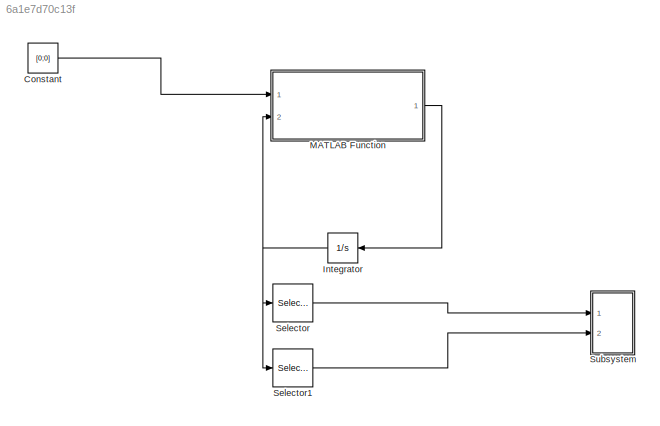
MODEL slx_6a1e7d70c13f
KIND model
CONFIG AbsTol = auto
CONFIG EnableMultiTasking = off
CONFIG FixedStep = 0.01
CONFIG MaxStep = auto
CONFIG MinStep = auto
CONFIG RelTol = 1e-3
CONFIG SampleTimeConstraint = Unconstrained
CONFIG SolverName = ode1
CONFIG StartTime = 0
CONFIG StopTime = 10
BLOCK [Constant] Constant
  Value = [0;0]
BLOCK [Integrator] Integrator
  InitialCondition = [0;0;0.1;0]
  NameLocation = top
  Ports = [1, 1]
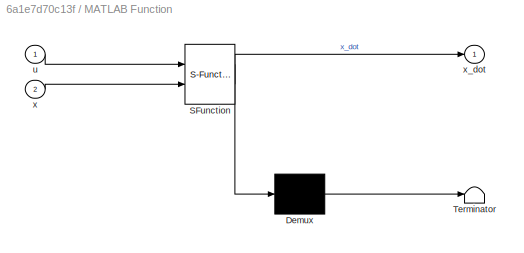
BLOCK [SubSystem] MATLAB Function
  ErrorFcn = Stateflow.Translate.translate
  PermitHierarchicalResolution = ExplicitOnly
  Ports = [2, 1]
  RequestExecContextInheritance = off
  SFBlockType = MATLAB Function
  TreatAsAtomicUnit = on
BLOCK [Demux] MATLAB Function/ Demux 
  Outputs = 1
  Ports = [1, 1]
BLOCK [S-Function] MATLAB Function/ SFunction 
  EnableBusSupport = on
  FunctionName = sf_sfun
  PortCounts = [2 2]
  Ports = [2, 2]
  SFcnIsStateOwnerBlock = off
  SFunctionDeploymentMode = off
  Tag = Stateflow S-Function 1
BLOCK [Terminator] MATLAB Function/ Terminator 
BLOCK [Inport] MATLAB Function/u
BLOCK [Inport] MATLAB Function/x
  Port = 2
BLOCK [Outport] MATLAB Function/x_dot
BLOCK [Selector] Selector
  IndexOptions = Index vector (dialog)
  Indices = [1]
  InputPortWidth = 4
  OutputSizes = 1
  Ports = [1, 1]
BLOCK [Selector] Selector1
  IndexOptions = Index vector (dialog)
  Indices = [3]
  InputPortWidth = 4
  OutputSizes = 1
  Ports = [1, 1]
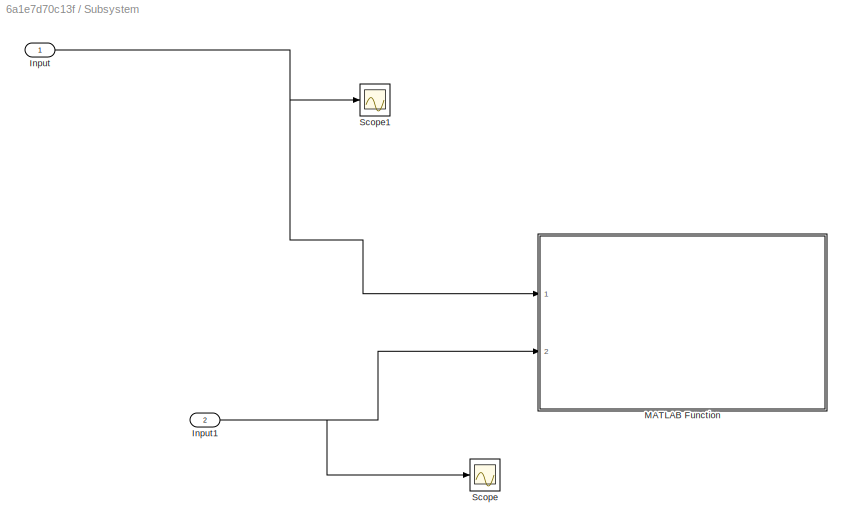
BLOCK [SubSystem] Subsystem
  Ports = [2]
  RequestExecContextInheritance = off
BLOCK [Inport] Subsystem/Input
BLOCK [Inport] Subsystem/Input1
  Port = 2
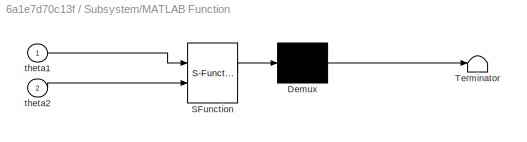
BLOCK [SubSystem] Subsystem/MATLAB Function
  ErrorFcn = Stateflow.Translate.translate
  PermitHierarchicalResolution = ExplicitOnly
  Ports = [2]
  RequestExecContextInheritance = off
  SFBlockType = MATLAB Function
  TreatAsAtomicUnit = on
BLOCK [Demux] Subsystem/MATLAB Function/ Demux 
  Outputs = 1
  Ports = [1, 1]
BLOCK [S-Function] Subsystem/MATLAB Function/ SFunction 
  EnableBusSupport = on
  FunctionName = sf_sfun
  PortCounts = [2 1]
  Ports = [2, 1]
  SFcnIsStateOwnerBlock = off
  SFunctionDeploymentMode = off
  Tag = Stateflow S-Function 2
BLOCK [Terminator] Subsystem/MATLAB Function/ Terminator 
BLOCK [Inport] Subsystem/MATLAB Function/theta1
BLOCK [Inport] Subsystem/MATLAB Function/theta2
  Port = 2
BLOCK [Scope] Subsystem/Scope
  Floating = off
  NumInputPorts = 1
  Ports = [1]
  ScopeSpecificationString = Simulink.scopes.TimeScopeBlockCfg('CurrentConfiguration', extmgr.ConfigurationSet(extmgr.Configuration('Core','General UI',true),extmgr.Configuration('Core','Source UI',true),extmgr.Configuration('Sources','WiredSimulink',true),extmgr.Configuration('Visuals','Time Domain',true,'SerializedDisplays',{struct('MinYLimReal','-0.7854','MaxYLimReal','7.06858','YLabelReal','','MinYLimMag','0.00000','MaxYL...<+1328ch>
BLOCK [Scope] Subsystem/Scope1
  Floating = off
  NumInputPorts = 1
  Ports = [1]
  ScopeSpecificationString = Simulink.scopes.TimeScopeBlockCfg('CurrentConfiguration', extmgr.ConfigurationSet(extmgr.Configuration('Core','General UI',true),extmgr.Configuration('Core','Source UI',true),extmgr.Configuration('Sources','WiredSimulink',true,'DataLoggingVariableName','ScopeData1'),extmgr.Configuration('Visuals','Time Domain',true,'SerializedDisplays',{struct('MinYLimReal','-0.7854','MaxYLimReal','7.06858','YLabe...<+1366ch>
LINE Constant:1 -> MATLAB Function:1
NET Integrator:1 -> MATLAB Function:2, Selector1:1, Selector:1
LINE MATLAB Function:1 -> Integrator:1
LINE Selector1:1 -> Subsystem:2
LINE Selector:1 -> Subsystem:1
NET Subsystem/Input1:1 -> Subsystem/MATLAB Function:2, Subsystem/Scope:1
NET Subsystem/Input:1 -> Subsystem/MATLAB Function:1, Subsystem/Scope1:1
note: NET lines group one-source signal fan-out (src -> all destinations, sorted); 1:1 wires keep LINE
CHART Subsystem/MATLAB Function states=1 transitions=1
  STATE_LABEL 'eML_blk_kernel()'
  STATE_LABEL "SCRIPT:\nfunction  fcn(theta1,theta2)\nlink1_frame1 = [0,0,0;\n                0,0,-1;\n                0,6,-1;\n                0,6,0;\n                0,8,0]; % declaration of link1 points in FRAME-1\nlink1_frame0 = zeros(5,3);\nlink2_frame2 = [0,0,0;\n                0,12,0]; % declaration of link2 points in FRAME-1    \nlink2_frame1 = zeros(2,3);\nlink2_frame0 = zeros(2,3);\nplot3([0,0],[0,0],[-10,0],'ks-...<+1301ch>"
CHART MATLAB Function states=1 transitions=1
  STATE_LABEL 'eML_blk_kernel()'
  STATE_LABEL 'SCRIPT:\nfunction x_dot  = fcn(u, x)\n\ntheta_1_dot = 0.0171;\ntheta_2_dot = 0.0038;\ntheta_3_dot = 0.0038;\ntheta_4_dot = 0.0921;\n\ntheta_1 = 0.0304;\ntheta_2 = 0.0184;\ntheta_3 = 0.0184;\ntheta_4 = 0.0921;\ntheta_5 = 0.6101;\ntheta_6 = 0.0097;\n\nq_1 = x(1);\nq_1_dot = x(2);\nq_2= x(3);\nq_2_dot=x(4);\nq_dot = [q_1_dot;q_2_dot];\n\nm_11 = theta_1+theta_2*sin(q_2)^2;\nm_12 = theta_3*cos(q_2);\nc_11 = 2*theta_2*sin(q_2...<+467ch>'
CHART  states=0 transitions=0
CHART  states=0 transitions=0
